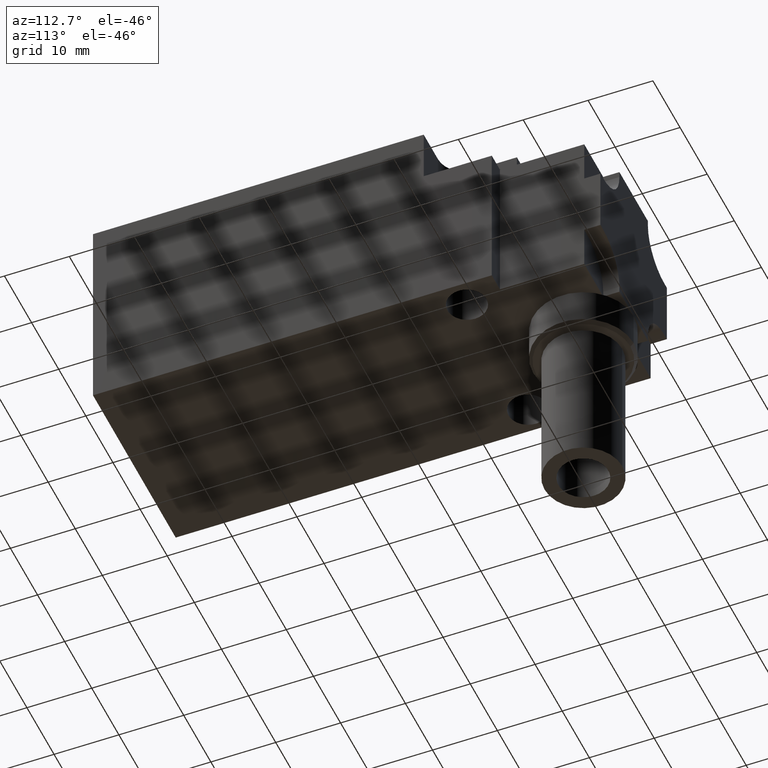
[diagram: clean part render]
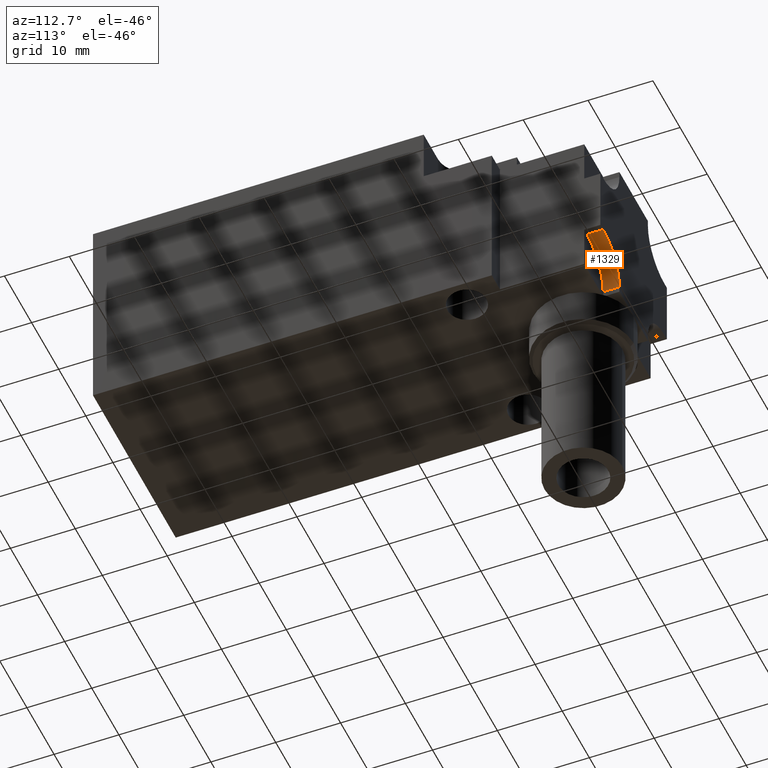
[diagram: same view with one face highlighted and labeled with its STEP entity id]
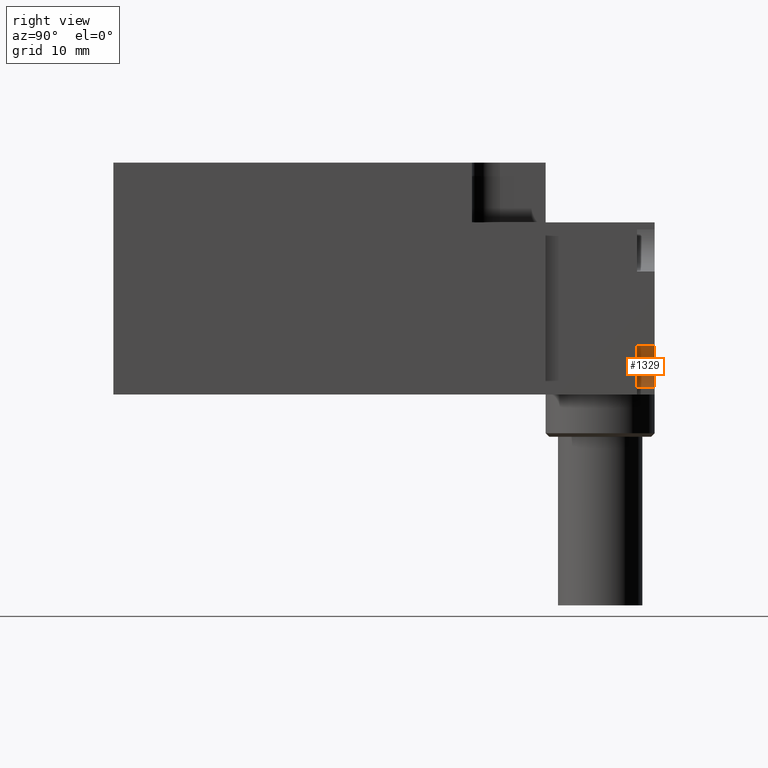
[diagram: same view with one face highlighted and labeled with its STEP entity id]
A machine part, auxiliary view. The second image highlights one B-rep face of the part: STEP entity #1329.
A second angle (right view) of the same face is appended — the face is thin or edge-on in the first view.
In plain terms, the highlighted cylindrical surface (partial cylindrical patch) has radius 6 mm, axis along (0, 1, 0).
Its self-contained STEP definition (entity closure, byte-faithful):
#1233=CARTESIAN_POINT('',(11.249999999979153,7.749999999969077,7.000000114298985));
#1234=VERTEX_POINT('',#1233);
#1241=CARTESIAN_POINT('',(5.249999999979153,7.749999999969077,1.000000114298985));
#1242=VERTEX_POINT('',#1241);
#1243=CARTESIAN_POINT('',(11.249999999979153,7.749999999969077,1.000000114298985));
#1244=DIRECTION('',(0.0,1.0,0.0));
#1245=DIRECTION('',(-1.0,0.0,0.0));
#1246=AXIS2_PLACEMENT_3D('',#1243,#1244,#1245);
#1247=CIRCLE('',#1246,6.0);
#1248=EDGE_CURVE('',#1242,#1234,#1247,.T.);
#1298=CARTESIAN_POINT('',(11.249999999979153,5.249999999979082,1.000000114298985));
#1299=DIRECTION('',(0.0,1.0,0.0));
#1300=DIRECTION('',(-1.0,0.0,0.0));
#1301=AXIS2_PLACEMENT_3D('',#1298,#1299,#1300);
#1302=CYLINDRICAL_SURFACE('',#1301,6.0);
#1303=CARTESIAN_POINT('',(5.249999999979153,5.249999999979082,1.000000114298985));
#1304=VERTEX_POINT('',#1303);
#1305=CARTESIAN_POINT('',(5.249999999979153,5.249999999979082,1.000000114298985));
#1306=DIRECTION('',(0.0,1.0,0.0));
#1307=VECTOR('',#1306,2.499999999989996);
#1308=LINE('',#1305,#1307);
#1309=EDGE_CURVE('',#1304,#1242,#1308,.T.);
#1310=ORIENTED_EDGE('',*,*,#1309,.T.);
#1311=ORIENTED_EDGE('',*,*,#1248,.T.);
#1312=CARTESIAN_POINT('',(11.249999999979153,5.249999999979082,7.000000114298985));
#1313=VERTEX_POINT('',#1312);
#1314=CARTESIAN_POINT('',(11.249999999979153,5.249999999979082,7.000000114298985));
#1315=DIRECTION('',(0.0,1.0,0.0));
#1316=VECTOR('',#1315,2.499999999989996);
#1317=LINE('',#1314,#1316);
#1318=EDGE_CURVE('',#1313,#1234,#1317,.T.);
#1319=ORIENTED_EDGE('',*,*,#1318,.F.);
#1320=CARTESIAN_POINT('',(11.249999999979153,5.249999999979082,1.000000114298985));
#1321=DIRECTION('',(0.0,1.0,0.0));
#1322=DIRECTION('',(-1.0,0.0,0.0));
#1323=AXIS2_PLACEMENT_3D('',#1320,#1321,#1322);
#1324=CIRCLE('',#1323,6.0);
#1325=EDGE_CURVE('',#1304,#1313,#1324,.T.);
#1326=ORIENTED_EDGE('',*,*,#1325,.F.);
#1327=EDGE_LOOP('',(#1310,#1311,#1319,#1326));
#1328=FACE_OUTER_BOUND('',#1327,.T.);
#1329=ADVANCED_FACE('',(#1328),#1302,.F.);